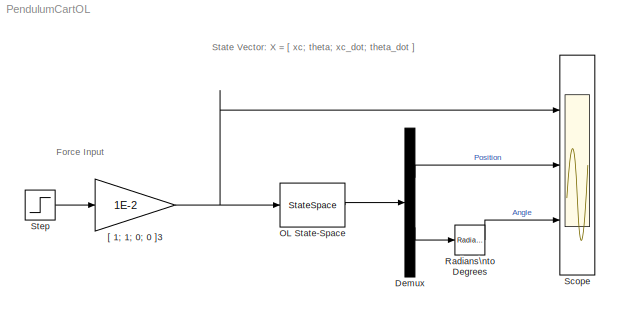
MODEL PendulumCartOL
KIND model
BLOCK [Demux] Demux
  DisplayOption = bar
  Outputs = 2
  Ports = [1, 2]
  SID = 115
BLOCK [StateSpace] OL State-Space
  A = A
  B = B
  C = C
  D = D
  Ports = [1, 1]
  SID = 34
  X0 = [0; 0; 0; 0 ]
BLOCK [Reference] Radians\nto Degrees  REF=simulink_extras/Transformations/Radians\nto Degrees
  Ports = [1, 1]
  SID = 83
  SourceBlock = simulink_extras/Transformations/Radians\nto Degrees
  SourceType = RadiansToDegrees
BLOCK [Scope] Scope
  DataFormat = StructureWithTime
  Floating = off
  LimitDataPoints = off
  NumInputPorts = 3
  Ports = [3]
  SID = 85
  SampleTime = 0
  SaveName = FSR_data
  SaveToWorkspace = on
  ShowLegends = off
  TickLabels = on
  TimeRange = 10
  YMax = 0.1~0~1.4
  YMin = 0~-0.012~-0.2
  ZoomMode = yonly
BLOCK [Step] Step
  SID = 58
  SampleTime = 0
  Time = 0.5
BLOCK [Gain] [ 1; 1; 0; 0 ]3
  Gain = 1E-2
  SID = 105
ANNOTATION (root): Force Input
ANNOTATION (root): State Vector: X = [ xc; theta; xc_dot; theta_dot ]
LINE Demux:1 -> Scope:2
LINE Demux:2 -> Radians\nto Degrees:1
LINE OL State-Space:1 -> Demux:1
LINE Radians\nto Degrees:1 -> Scope:3
LINE Step:1 -> [ 1; 1; 0; 0 ]3:1
NET [ 1; 1; 0; 0 ]3:1 -> OL State-Space:1, Scope:1
note: NET lines group one-source signal fan-out (src -> all destinations, sorted); 1:1 wires keep LINE
